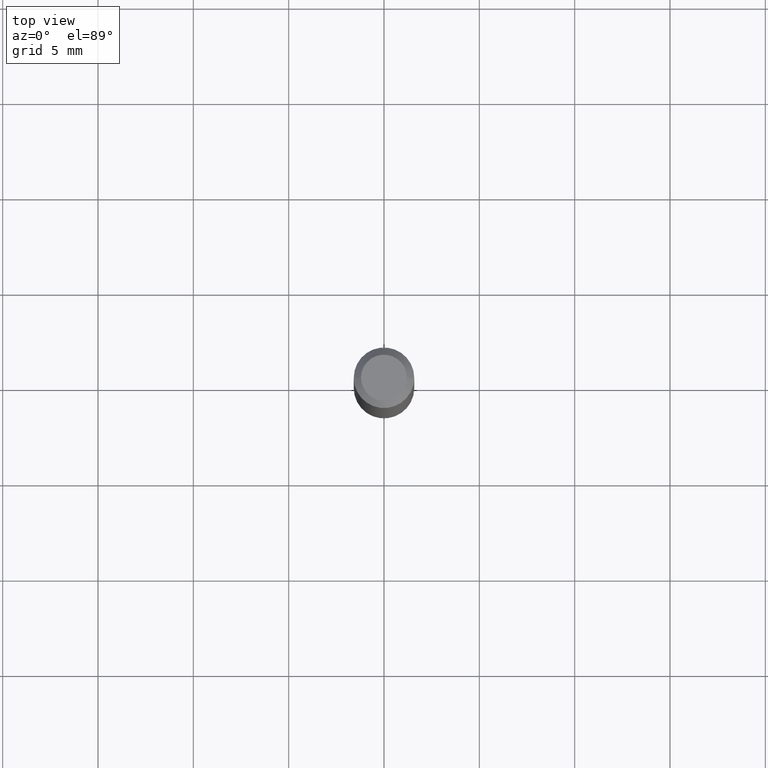
[diagram: clean part render]
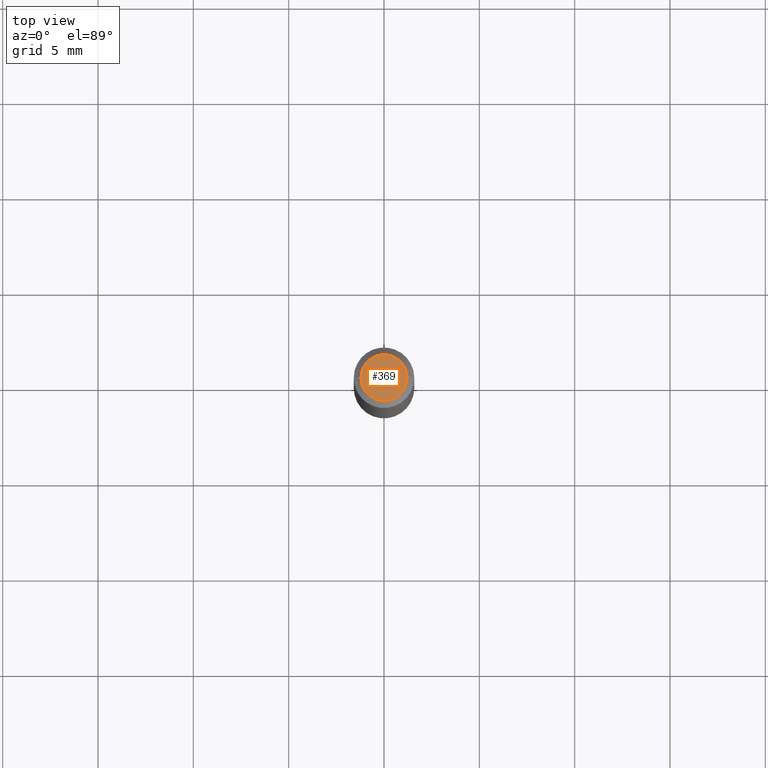
[diagram: same view with one face highlighted and labeled with its STEP entity id]
A machine part, top view. The second image highlights one B-rep face of the part: STEP entity #369.
In plain terms, the highlighted planar face has unit normal (0, -0, -1).
Its self-contained STEP definition (entity closure, byte-faithful):
#16 = DIRECTION ( 'NONE',  ( -2.445468806185136597E-29, 3.491481338843145583E-15, 1.000000000000000000 ) ) ;
#51 = EDGE_LOOP ( 'NONE', ( #171, #359 ) ) ;
#58 = DIRECTION ( 'NONE',  ( 2.438088387897960049E-29, -3.491481338843145188E-15, -1.000000000000000000 ) ) ;
#66 = VERTEX_POINT ( 'NONE', #343 ) ;
#70 = CIRCLE ( 'NONE', #248, 0.04749999999999999362 ) ;
#89 = CARTESIAN_POINT ( 'NONE',  ( 3.316907271900976096E-16, 0.04749999999999999362, 5.577130024057243141E-16 ) ) ;
#101 = CIRCLE ( 'NONE', #465, 0.04749999999999999362 ) ;
#136 = DIRECTION ( 'NONE',  ( 1.000000000000000000, -6.982962677686267499E-15, 5.108144071313017768E-29 ) ) ;
#171 = ORIENTED_EDGE ( 'NONE', *, *, #406, .T. ) ;
#172 = CARTESIAN_POINT ( 'NONE',  ( -3.538878827018360888E-44, 5.052581064911080951E-30, 1.447116732001547520E-15 ) ) ;
#179 = DIRECTION ( 'NONE',  ( -2.445468806185136597E-29, 3.491481338843145583E-15, 1.000000000000000000 ) ) ;
#248 = AXIS2_PLACEMENT_3D ( 'NONE', #405, #16, #136 ) ;
#259 = CARTESIAN_POINT ( 'NONE',  ( -0.04749999999999999362, 3.578768372314235651E-16, 1.447116732001545153E-15 ) ) ;
#296 = AXIS2_PLACEMENT_3D ( 'NONE', #89, #58, #328 ) ;
#328 = DIRECTION ( 'NONE',  ( -1.000000000000000000, 6.982962677686265922E-15, -4.876176775795935793E-29 ) ) ;
#343 = CARTESIAN_POINT ( 'NONE',  ( 0.04749999999999999362, -4.035134999187553478E-16, 1.447116732001550281E-15 ) ) ;
#359 = ORIENTED_EDGE ( 'NONE', *, *, #451, .T. ) ;
#369 = ADVANCED_FACE ( 'NONE', ( #445 ), #415, .F. ) ;
#405 = CARTESIAN_POINT ( 'NONE',  ( -3.538878827018360888E-44, 5.052581064911080951E-30, 1.447116732001547520E-15 ) ) ;
#406 = EDGE_CURVE ( 'NONE', #437, #66, #70, .T. ) ;
#415 = PLANE ( 'NONE',  #296 ) ;
#421 = DIRECTION ( 'NONE',  ( 1.000000000000000000, -6.982962677686267499E-15, 5.108144071313017768E-29 ) ) ;
#437 = VERTEX_POINT ( 'NONE', #259 ) ;
#445 = FACE_OUTER_BOUND ( 'NONE', #51, .T. ) ;
#451 = EDGE_CURVE ( 'NONE', #66, #437, #101, .T. ) ;
#465 = AXIS2_PLACEMENT_3D ( 'NONE', #172, #179, #421 ) ;